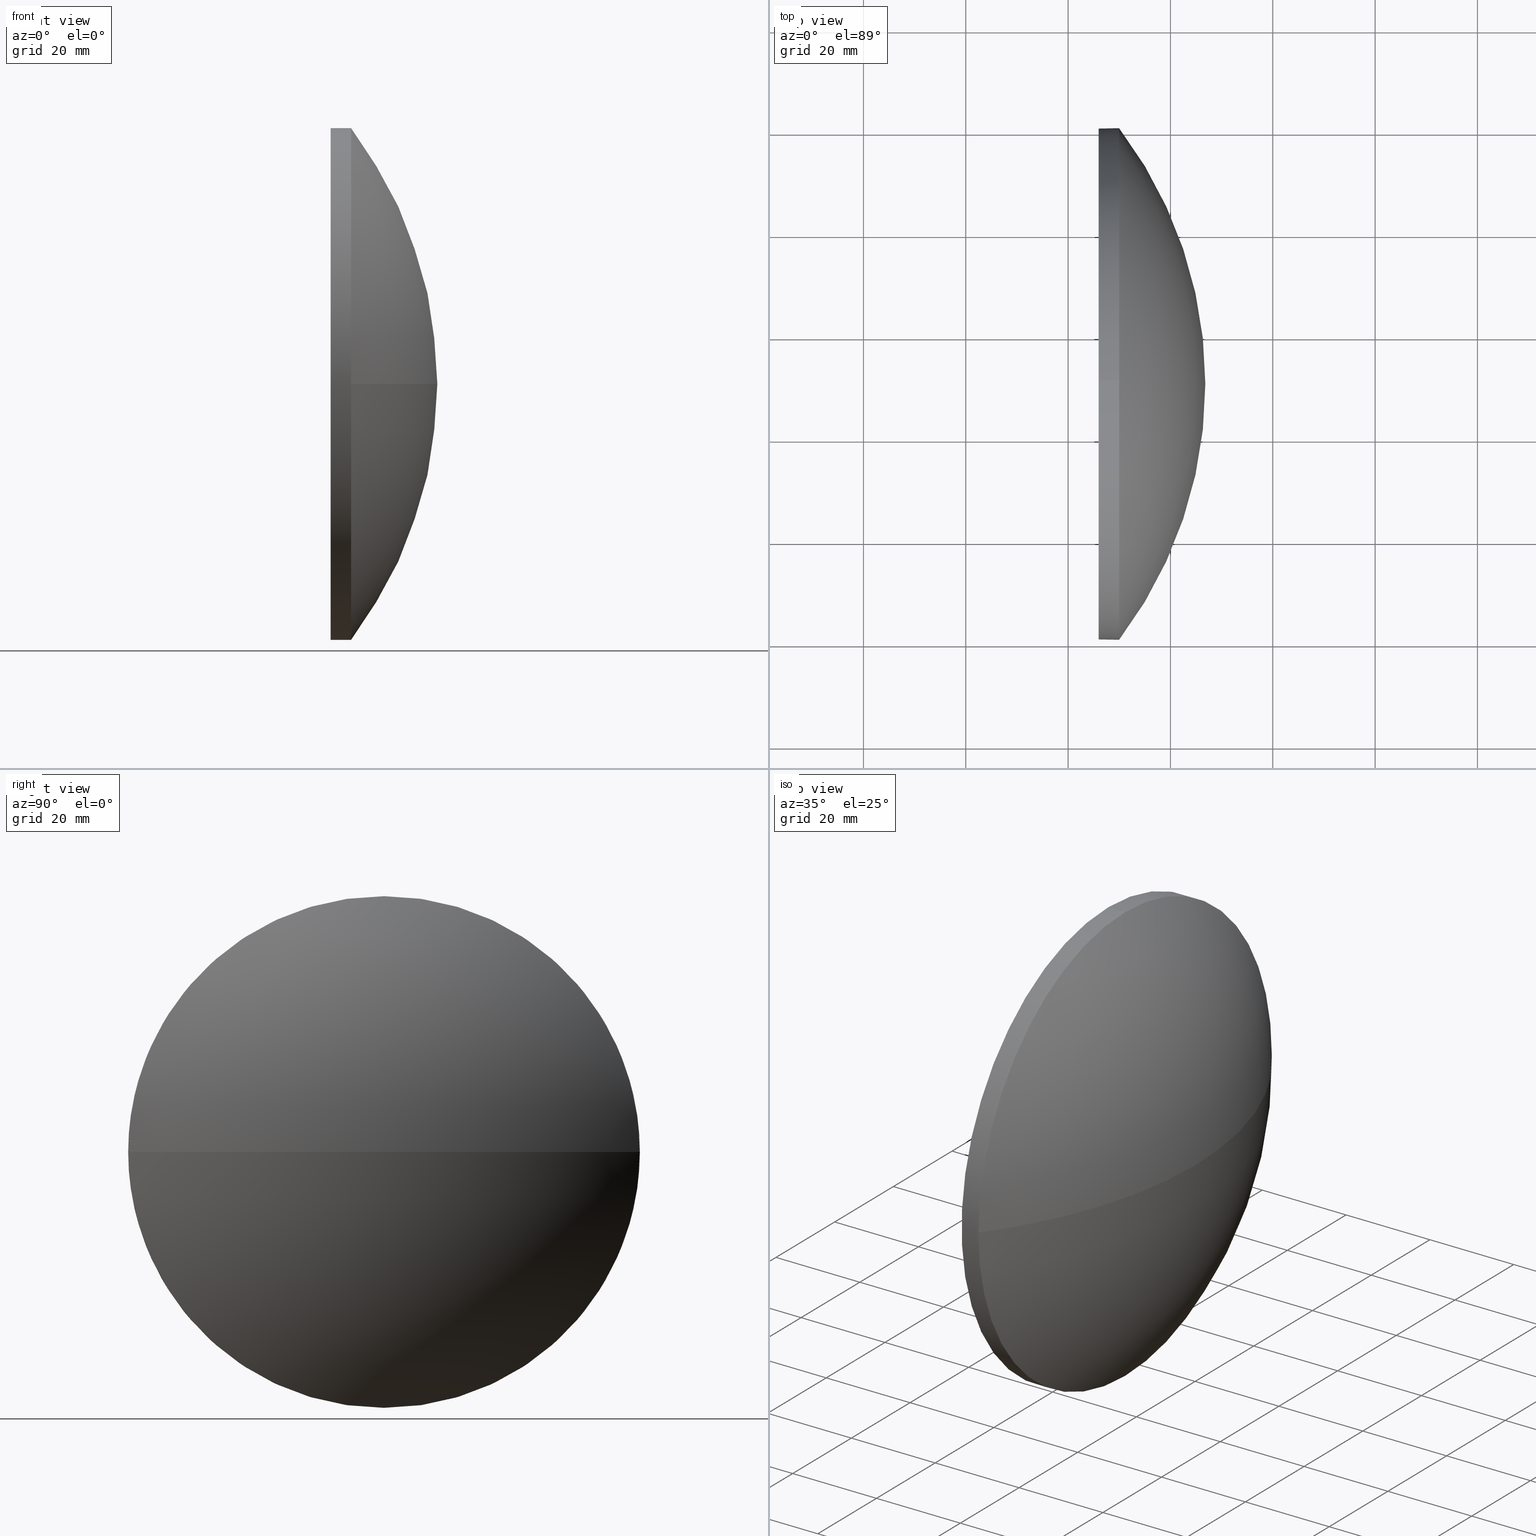
[diagram: canonical four-view strip — front | top / right | iso, engineering-drawing reading convention]
A machine part, canonical four-view strip (front | top / right | iso — engineering-drawing reading convention). The complete STEP part file that produces these views, byte-faithful:
ISO-10303-21;
HEADER;
FILE_DESCRIPTION (( 'STEP AP214' ),
    '1' );
FILE_NAME ('100169.STEP',
    '2019-05-17T05:34:39',
    ( '' ),
    ( '' ),
    'SwSTEP 2.0',
    'SolidWorks 2016',
    '' );
FILE_SCHEMA (( 'AUTOMOTIVE_DESIGN' ));
ENDSEC;

DATA;
#1 = CARTESIAN_POINT ( 'NONE',  ( 229.9713472661685500, 130.4671098528244200, 0.0000000000000000000 ) ) ;
#2 = ORIENTED_EDGE ( 'NONE', *, *, #174, .T. ) ;
#3 = PRODUCT_CONTEXT ( 'NONE', #133, 'mechanical' ) ;
#4 = MECHANICAL_DESIGN_GEOMETRIC_PRESENTATION_REPRESENTATION (  '', ( #13 ), #50 ) ;
#5 = ADVANCED_FACE ( 'NONE', ( #99 ), #125, .F. ) ;
#6 = DIRECTION ( 'NONE',  ( -1.000000000000000000, -0.0000000000000000000, -0.0000000000000000000 ) ) ;
#7 = CARTESIAN_POINT ( 'NONE',  ( 164.2123710050408900, 130.4671098528244200, 0.0000000000000000000 ) ) ;
#8 = ORIENTED_EDGE ( 'NONE', *, *, #32, .F. ) ;
#9 = CARTESIAN_POINT ( 'NONE',  ( 0.0000000000000000000, 0.0000000000000000000, 0.0000000000000000000 ) ) ;
#10 = SPHERICAL_SURFACE ( 'NONE', #19, 82.60897626112768000 ) ;
#11 = EDGE_LOOP ( 'NONE', ( #172, #101, #14, #112 ) ) ;
#12 = ADVANCED_BREP_SHAPE_REPRESENTATION ( '100169', ( #33, #78 ), #135 ) ;
#13 = STYLED_ITEM ( 'NONE', ( #74 ), #33 ) ;
#14 = ORIENTED_EDGE ( 'NONE', *, *, #145, .F. ) ;
#15 = CIRCLE ( 'NONE', #55, 50.00000000000001400 ) ;
#16 = CYLINDRICAL_SURFACE ( 'NONE', #139, 50.00000000000001400 ) ;
#17 = ADVANCED_FACE ( 'NONE', ( #63 ), #79, .T. ) ;
#18 = CARTESIAN_POINT ( 'NONE',  ( 217.9945825323866300, 130.4671098528244200, 0.0000000000000000000 ) ) ;
#19 = AXIS2_PLACEMENT_3D ( 'NONE', #166, #71, #178 ) ;
#20 = DIRECTION ( 'NONE',  ( 0.0000000000000000000, 0.0000000000000000000, 1.000000000000000000 ) ) ;
#21 = CARTESIAN_POINT ( 'NONE',  ( 229.9713472661685500, 130.4671098528244200, 50.00000000000001400 ) ) ;
#22 = ORIENTED_EDGE ( 'NONE', *, *, #159, .T. ) ;
#23 = DIRECTION ( 'NONE',  ( 0.0000000000000000000, 0.0000000000000000000, 1.000000000000000000 ) ) ;
#24 = CARTESIAN_POINT ( 'NONE',  ( 225.9713472661685500, 130.4671098528244200, 0.0000000000000000000 ) ) ;
#25 = CIRCLE ( 'NONE', #104, 50.00000000000001400 ) ;
#26 = DIRECTION ( 'NONE',  ( 0.0000000000000000000, 0.0000000000000000000, 1.000000000000000000 ) ) ;
#27 = LINE ( 'NONE', #184, #185 ) ;
#28 = SURFACE_STYLE_USAGE ( .BOTH. , #62 ) ;
#29 = APPLICATION_PROTOCOL_DEFINITION ( 'draft international standard', 'automotive_design', 1998, #123 ) ;
#30 = COLOUR_RGB ( '',1.000000000000000000, 1.000000000000000000, 1.000000000000000000 ) ;
#31 = PRODUCT ( '100169', '100169', '', ( #3 ) ) ;
#32 = EDGE_CURVE ( 'NONE', #165, #167, #152, .T. ) ;
#33 = MANIFOLD_SOLID_BREP ( '��ת1', #173 ) ;
#34 = CIRCLE ( 'NONE', #53, 50.00000000000001400 ) ;
#35 = EDGE_CURVE ( 'NONE', #164, #137, #122, .T. ) ;
#36 = FACE_OUTER_BOUND ( 'NONE', #130, .T. ) ;
#37 = DIRECTION ( 'NONE',  ( 1.000000000000000000, 0.0000000000000000000, 0.0000000000000000000 ) ) ;
#38 = CARTESIAN_POINT ( 'NONE',  ( 229.9713472661685500, 180.4671098528244500, 0.0000000000000000000 ) ) ;
#39 = SURFACE_STYLE_FILL_AREA ( #61 ) ;
#40 = DIRECTION ( 'NONE',  ( -1.000000000000000000, -0.0000000000000000000, -0.0000000000000000000 ) ) ;
#41 = APPLICATION_PROTOCOL_DEFINITION ( 'draft international standard', 'automotive_design', 1998, #133 ) ;
#42 = DIRECTION ( 'NONE',  ( 0.0000000000000000000, 0.0000000000000000000, 1.000000000000000000 ) ) ;
#43 = ORIENTED_EDGE ( 'NONE', *, *, #151, .F. ) ;
#44 = CIRCLE ( 'NONE', #121, 50.00000000000001400 ) ;
#45 = CARTESIAN_POINT ( 'NONE',  ( 246.8213472661685400, 130.4671098528244200, 0.0000000000000000000 ) ) ;
#46 = EDGE_CURVE ( 'NONE', #161, #165, #25, .T. ) ;
#47 = ORIENTED_EDGE ( 'NONE', *, *, #145, .T. ) ;
#48 = UNCERTAINTY_MEASURE_WITH_UNIT (LENGTH_MEASURE( 1.000000000000000100E-005 ), #92, 'distance_accuracy_value', 'NONE');
#49 = PRODUCT_DEFINITION_CONTEXT ( 'detailed design', #123, 'design' ) ;
#50 =( GEOMETRIC_REPRESENTATION_CONTEXT ( 3 ) GLOBAL_UNCERTAINTY_ASSIGNED_CONTEXT ( ( #100 ) ) GLOBAL_UNIT_ASSIGNED_CONTEXT ( ( #169, #180, #91 ) ) REPRESENTATION_CONTEXT ( 'NONE', 'WORKASPACE' ) );
#51 = DIRECTION ( 'NONE',  ( 1.000000000000000000, 0.0000000000000000000, 0.0000000000000000000 ) ) ;
#52 = SURFACE_STYLE_FILL_AREA ( #69 ) ;
#53 = AXIS2_PLACEMENT_3D ( 'NONE', #1, #94, #23 ) ;
#54 = DIRECTION ( 'NONE',  ( -1.000000000000000000, -0.0000000000000000000, -0.0000000000000000000 ) ) ;
#55 = AXIS2_PLACEMENT_3D ( 'NONE', #120, #72, #171 ) ;
#56 = CARTESIAN_POINT ( 'NONE',  ( 225.9713472661685500, 130.4671098528244200, -50.00000000000001400 ) ) ;
#57 = DIRECTION ( 'NONE',  ( -1.000000000000000000, -0.0000000000000000000, -0.0000000000000000000 ) ) ;
#58 = CARTESIAN_POINT ( 'NONE',  ( 229.9713472661685500, 80.46710985282440700, -6.123233995736769200E-015 ) ) ;
#59 = PRESENTATION_STYLE_ASSIGNMENT (( #28 ) ) ;
#60 =( NAMED_UNIT ( * ) PLANE_ANGLE_UNIT ( ) SI_UNIT ( $, .RADIAN. ) );
#61 = FILL_AREA_STYLE ('',( #73 ) ) ;
#62 = SURFACE_SIDE_STYLE ('',( #39 ) ) ;
#63 = FACE_OUTER_BOUND ( 'NONE', #11, .T. ) ;
#64 = ADVANCED_FACE ( 'NONE', ( #105 ), #16, .T. ) ;
#65 = ORIENTED_EDGE ( 'NONE', *, *, #46, .F. ) ;
#66 = PRESENTATION_LAYER_ASSIGNMENT (  '', '', ( #131 ) ) ;
#67 = CIRCLE ( 'NONE', #75, 82.60897626112768000 ) ;
#68 = ORIENTED_EDGE ( 'NONE', *, *, #35, .T. ) ;
#69 = FILL_AREA_STYLE ('',( #115 ) ) ;
#70 = DIRECTION ( 'NONE',  ( 0.0000000000000000000, 0.0000000000000000000, -1.000000000000000000 ) ) ;
#71 = DIRECTION ( 'NONE',  ( -0.0000000000000000000, 0.0000000000000000000, -1.000000000000000000 ) ) ;
#72 = DIRECTION ( 'NONE',  ( -1.000000000000000000, -0.0000000000000000000, -0.0000000000000000000 ) ) ;
#73 = FILL_AREA_STYLE_COLOUR ( '', #146 ) ;
#74 = PRESENTATION_STYLE_ASSIGNMENT (( #116 ) ) ;
#75 = AXIS2_PLACEMENT_3D ( 'NONE', #111, #136, #160 ) ;
#76 = CARTESIAN_POINT ( 'NONE',  ( 225.9713472661685500, 130.4671098528244200, 0.0000000000000000000 ) ) ;
#77 = UNCERTAINTY_MEASURE_WITH_UNIT (LENGTH_MEASURE( 1.000000000000000100E-005 ), #148, 'distance_accuracy_value', 'NONE');
#78 = AXIS2_PLACEMENT_3D ( 'NONE', #9, #177, #80 ) ;
#79 = SPHERICAL_SURFACE ( 'NONE', #127, 82.60897626112768000 ) ;
#80 = DIRECTION ( 'NONE',  ( 1.000000000000000000, 0.0000000000000000000, 0.0000000000000000000 ) ) ;
#81 = AXIS2_PLACEMENT_3D ( 'NONE', #129, #142, #37 ) ;
#82 = ADVANCED_FACE ( 'NONE', ( #36 ), #10, .T. ) ;
#83 = PRODUCT_DEFINITION_FORMATION_WITH_SPECIFIED_SOURCE ( '�κ�', '', #31, .NOT_KNOWN. ) ;
#84 = FACE_OUTER_BOUND ( 'NONE', #114, .T. ) ;
#85 = DIRECTION ( 'NONE',  ( -1.000000000000000000, -0.0000000000000000000, -0.0000000000000000000 ) ) ;
#86 = CARTESIAN_POINT ( 'NONE',  ( 217.9945825323866300, 130.4671098528244200, 50.00000000000001400 ) ) ;
#87 = CARTESIAN_POINT ( 'NONE',  ( 225.9713472661685500, 130.4671098528244200, 0.0000000000000000000 ) ) ;
#88 = CARTESIAN_POINT ( 'NONE',  ( 229.9713472661685500, 130.4671098528244200, 0.0000000000000000000 ) ) ;
#89 = AXIS2_PLACEMENT_3D ( 'NONE', #24, #144, #175 ) ;
#90 = ORIENTED_EDGE ( 'NONE', *, *, #109, .T. ) ;
#91 =( NAMED_UNIT ( * ) SI_UNIT ( $, .STERADIAN. ) SOLID_ANGLE_UNIT ( ) );
#92 =( LENGTH_UNIT ( ) NAMED_UNIT ( * ) SI_UNIT ( .MILLI., .METRE. ) );
#93 = CARTESIAN_POINT ( 'NONE',  ( 229.9713472661685500, 130.4671098528244200, 0.0000000000000000000 ) ) ;
#94 = DIRECTION ( 'NONE',  ( -1.000000000000000000, -0.0000000000000000000, -0.0000000000000000000 ) ) ;
#95 = VERTEX_POINT ( 'NONE', #56 ) ;
#96 = DIRECTION ( 'NONE',  ( -1.000000000000000000, -0.0000000000000000000, -0.0000000000000000000 ) ) ;
#97 = AXIS2_PLACEMENT_3D ( 'NONE', #183, #57, #42 ) ;
#98 = EDGE_LOOP ( 'NONE', ( #2, #22 ) ) ;
#99 = FACE_OUTER_BOUND ( 'NONE', #98, .T. ) ;
#100 = UNCERTAINTY_MEASURE_WITH_UNIT (LENGTH_MEASURE( 1.000000000000000100E-005 ), #169, 'distance_accuracy_value', 'NONE');
#101 = ORIENTED_EDGE ( 'NONE', *, *, #154, .T. ) ;
#102 = DIRECTION ( 'NONE',  ( 0.0000000000000000000, 0.0000000000000000000, 1.000000000000000000 ) ) ;
#103 =( NAMED_UNIT ( * ) SI_UNIT ( $, .STERADIAN. ) SOLID_ANGLE_UNIT ( ) );
#104 = AXIS2_PLACEMENT_3D ( 'NONE', #88, #6, #20 ) ;
#105 = FACE_OUTER_BOUND ( 'NONE', #138, .T. ) ;
#106 = ORIENTED_EDGE ( 'NONE', *, *, #109, .F. ) ;
#107 = DIRECTION ( 'NONE',  ( -1.000000000000000000, -0.0000000000000000000, -0.0000000000000000000 ) ) ;
#108 = ORIENTED_EDGE ( 'NONE', *, *, #174, .F. ) ;
#109 = EDGE_CURVE ( 'NONE', #179, #95, #27, .T. ) ;
#110 = PRODUCT_DEFINITION ( 'δ֪', '', #83, #49 ) ;
#111 = CARTESIAN_POINT ( 'NONE',  ( 164.2123710050408900, 130.4671098528244200, 0.0000000000000000000 ) ) ;
#112 = ORIENTED_EDGE ( 'NONE', *, *, #181, .F. ) ;
#113 = MECHANICAL_DESIGN_GEOMETRIC_PRESENTATION_REPRESENTATION (  '', ( #131 ), #147 ) ;
#114 = EDGE_LOOP ( 'NONE', ( #106, #47, #140, #126, #186 ) ) ;
#115 = FILL_AREA_STYLE_COLOUR ( '', #30 ) ;
#116 = SURFACE_STYLE_USAGE ( .BOTH. , #153 ) ;
#117 = PRODUCT_RELATED_PRODUCT_CATEGORY ( 'part', '', ( #31 ) ) ;
#118 = AXIS2_PLACEMENT_3D ( 'NONE', #87, #51, #70 ) ;
#119 = SHAPE_DEFINITION_REPRESENTATION ( #155, #12 ) ;
#120 = CARTESIAN_POINT ( 'NONE',  ( 229.9713472661685500, 130.4671098528244200, 0.0000000000000000000 ) ) ;
#121 = AXIS2_PLACEMENT_3D ( 'NONE', #76, #40, #143 ) ;
#122 = CIRCLE ( 'NONE', #81, 82.60897626112768000 ) ;
#123 = APPLICATION_CONTEXT ( 'automotive_design' ) ;
#124 = CIRCLE ( 'NONE', #163, 50.00000000000001400 ) ;
#125 = PLANE ( 'NONE',  #118 ) ;
#126 = ORIENTED_EDGE ( 'NONE', *, *, #32, .T. ) ;
#127 = AXIS2_PLACEMENT_3D ( 'NONE', #7, #128, #168 ) ;
#128 = DIRECTION ( 'NONE',  ( -0.0000000000000000000, 0.0000000000000000000, -1.000000000000000000 ) ) ;
#129 = CARTESIAN_POINT ( 'NONE',  ( 164.2123710050408900, 130.4671098528244200, 0.0000000000000000000 ) ) ;
#130 = EDGE_LOOP ( 'NONE', ( #158, #68, #43, #65 ) ) ;
#131 = STYLED_ITEM ( 'NONE', ( #59 ), #12 ) ;
#132 = CARTESIAN_POINT ( 'NONE',  ( 229.9713472661685500, 130.4671098528244200, -50.00000000000001400 ) ) ;
#133 = APPLICATION_CONTEXT ( 'automotive_design' ) ;
#134 = ORIENTED_EDGE ( 'NONE', *, *, #151, .T. ) ;
#135 =( GEOMETRIC_REPRESENTATION_CONTEXT ( 3 ) GLOBAL_UNCERTAINTY_ASSIGNED_CONTEXT ( ( #48 ) ) GLOBAL_UNIT_ASSIGNED_CONTEXT ( ( #92, #182, #103 ) ) REPRESENTATION_CONTEXT ( 'NONE', 'WORKASPACE' ) );
#136 = DIRECTION ( 'NONE',  ( 0.0000000000000000000, 1.224646799147353200E-016, -1.000000000000000000 ) ) ;
#137 = VERTEX_POINT ( 'NONE', #38 ) ;
#138 = EDGE_LOOP ( 'NONE', ( #176, #90, #108, #8, #134 ) ) ;
#139 = AXIS2_PLACEMENT_3D ( 'NONE', #18, #54, #102 ) ;
#140 = ORIENTED_EDGE ( 'NONE', *, *, #46, .T. ) ;
#141 = ADVANCED_FACE ( 'NONE', ( #84 ), #156, .T. ) ;
#142 = DIRECTION ( 'NONE',  ( -0.0000000000000000000, 0.0000000000000000000, 1.000000000000000000 ) ) ;
#143 = DIRECTION ( 'NONE',  ( 0.0000000000000000000, 0.0000000000000000000, 1.000000000000000000 ) ) ;
#144 = DIRECTION ( 'NONE',  ( -1.000000000000000000, -0.0000000000000000000, -0.0000000000000000000 ) ) ;
#145 = EDGE_CURVE ( 'NONE', #179, #161, #124, .T. ) ;
#146 = COLOUR_RGB ( '',1.000000000000000000, 1.000000000000000000, 1.000000000000000000 ) ;
#147 =( GEOMETRIC_REPRESENTATION_CONTEXT ( 3 ) GLOBAL_UNCERTAINTY_ASSIGNED_CONTEXT ( ( #77 ) ) GLOBAL_UNIT_ASSIGNED_CONTEXT ( ( #148, #60, #162 ) ) REPRESENTATION_CONTEXT ( 'NONE', 'WORKASPACE' ) );
#148 =( LENGTH_UNIT ( ) NAMED_UNIT ( * ) SI_UNIT ( .MILLI., .METRE. ) );
#149 = CIRCLE ( 'NONE', #89, 50.00000000000001400 ) ;
#150 = VECTOR ( 'NONE', #85, 1000.000000000000000 ) ;
#151 = EDGE_CURVE ( 'NONE', #165, #137, #34, .T. ) ;
#152 = LINE ( 'NONE', #86, #150 ) ;
#153 = SURFACE_SIDE_STYLE ('',( #52 ) ) ;
#154 = EDGE_CURVE ( 'NONE', #164, #161, #67, .T. ) ;
#155 = PRODUCT_DEFINITION_SHAPE ( 'NONE', 'NONE',  #110 ) ;
#156 = CYLINDRICAL_SURFACE ( 'NONE', #97, 50.00000000000001400 ) ;
#157 = CARTESIAN_POINT ( 'NONE',  ( 225.9713472661685500, 130.4671098528244200, 50.00000000000001400 ) ) ;
#158 = ORIENTED_EDGE ( 'NONE', *, *, #154, .F. ) ;
#159 = EDGE_CURVE ( 'NONE', #95, #167, #149, .T. ) ;
#160 = DIRECTION ( 'NONE',  ( 0.0000000000000000000, 1.000000000000000000, 1.224646799147353200E-016 ) ) ;
#161 = VERTEX_POINT ( 'NONE', #58 ) ;
#162 =( NAMED_UNIT ( * ) SI_UNIT ( $, .STERADIAN. ) SOLID_ANGLE_UNIT ( ) );
#163 = AXIS2_PLACEMENT_3D ( 'NONE', #93, #107, #26 ) ;
#164 = VERTEX_POINT ( 'NONE', #45 ) ;
#165 = VERTEX_POINT ( 'NONE', #21 ) ;
#166 = CARTESIAN_POINT ( 'NONE',  ( 164.2123710050408900, 130.4671098528244200, 0.0000000000000000000 ) ) ;
#167 = VERTEX_POINT ( 'NONE', #157 ) ;
#168 = DIRECTION ( 'NONE',  ( 0.0000000000000000000, 1.000000000000000000, 0.0000000000000000000 ) ) ;
#169 =( LENGTH_UNIT ( ) NAMED_UNIT ( * ) SI_UNIT ( .MILLI., .METRE. ) );
#170 = PRESENTATION_LAYER_ASSIGNMENT (  '', '', ( #13 ) ) ;
#171 = DIRECTION ( 'NONE',  ( 0.0000000000000000000, 0.0000000000000000000, 1.000000000000000000 ) ) ;
#172 = ORIENTED_EDGE ( 'NONE', *, *, #35, .F. ) ;
#173 = CLOSED_SHELL ( 'NONE', ( #64, #17, #82, #141, #5 ) ) ;
#174 = EDGE_CURVE ( 'NONE', #167, #95, #44, .T. ) ;
#175 = DIRECTION ( 'NONE',  ( 0.0000000000000000000, 0.0000000000000000000, 1.000000000000000000 ) ) ;
#176 = ORIENTED_EDGE ( 'NONE', *, *, #181, .T. ) ;
#177 = DIRECTION ( 'NONE',  ( 0.0000000000000000000, 0.0000000000000000000, 1.000000000000000000 ) ) ;
#178 = DIRECTION ( 'NONE',  ( 0.0000000000000000000, 1.000000000000000000, 0.0000000000000000000 ) ) ;
#179 = VERTEX_POINT ( 'NONE', #132 ) ;
#180 =( NAMED_UNIT ( * ) PLANE_ANGLE_UNIT ( ) SI_UNIT ( $, .RADIAN. ) );
#181 = EDGE_CURVE ( 'NONE', #137, #179, #15, .T. ) ;
#182 =( NAMED_UNIT ( * ) PLANE_ANGLE_UNIT ( ) SI_UNIT ( $, .RADIAN. ) );
#183 = CARTESIAN_POINT ( 'NONE',  ( 217.9945825323866300, 130.4671098528244200, 0.0000000000000000000 ) ) ;
#184 = CARTESIAN_POINT ( 'NONE',  ( 217.9945825323866300, 130.4671098528244200, -50.00000000000001400 ) ) ;
#185 = VECTOR ( 'NONE', #96, 1000.000000000000000 ) ;
#186 = ORIENTED_EDGE ( 'NONE', *, *, #159, .F. ) ;
ENDSEC;
END-ISO-10303-21;
